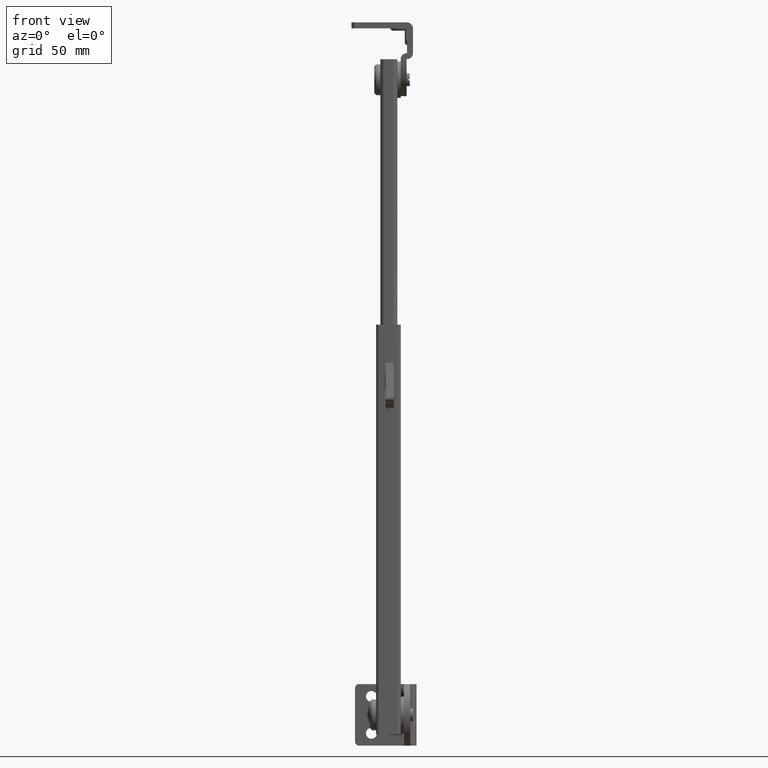
[diagram: clean part render]
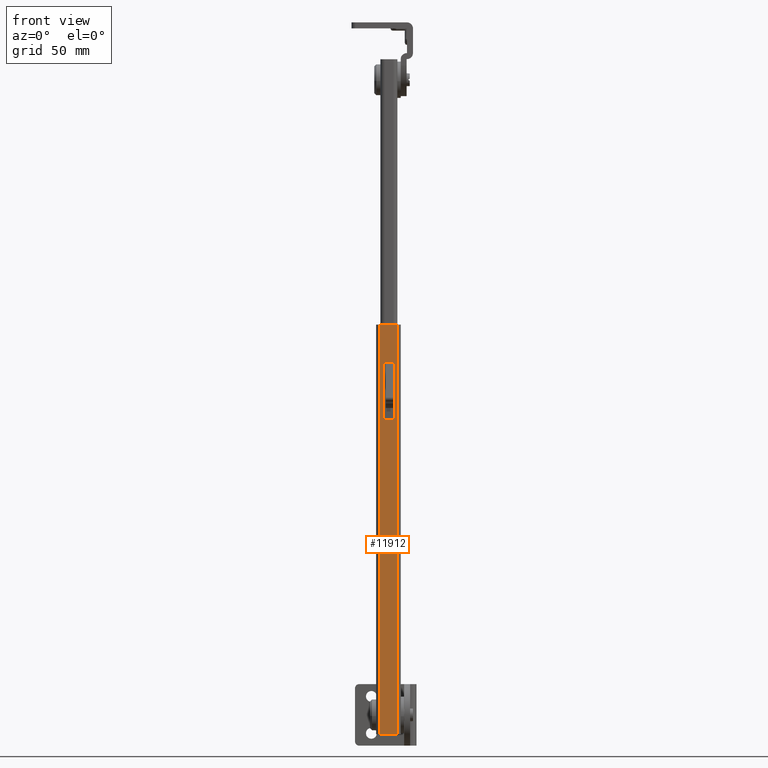
[diagram: same view with one face highlighted and labeled with its STEP entity id]
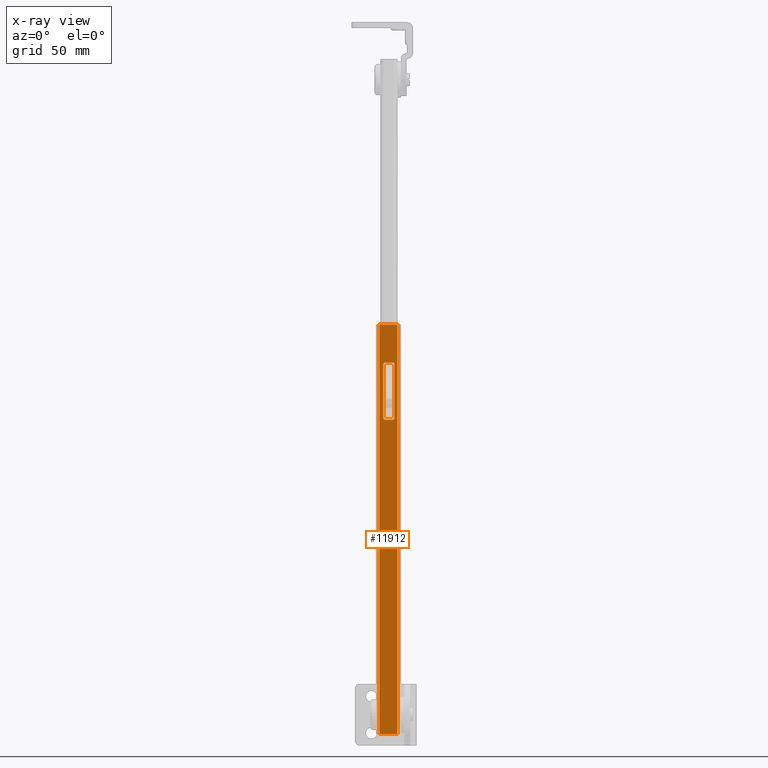
[diagram: x-ray of the same camera — body ghosted, the highlighted face saturated]
A machine part, front view. The second image highlights one B-rep face of the part: STEP entity #11912.
The next image is the same camera in x-ray: the body ghosted, the highlighted face saturated — about 0% of this face is hidden behind the body in this view.
In plain terms, the highlighted face is a freeform B-spline surface patch.
Its self-contained STEP definition (entity closure, byte-faithful):
#11041=CARTESIAN_POINT('',(9.0,-12.500000000000000,145.000000157079600));
#11042=VERTEX_POINT('',#11041);
#11065=CARTESIAN_POINT('',(8.0,-12.500000000000000,144.0));
#11066=VERTEX_POINT('',#11065);
#11072=CARTESIAN_POINT('',(8.999999999999988,-12.500000000000000,145.000000157079600));
#11073=CARTESIAN_POINT('',(9.000000065064494,-12.499999999999996,144.585786548698930));
#11074=CARTESIAN_POINT('',(8.707106836722570,-12.500000000000000,144.292893274349500));
#11075=CARTESIAN_POINT('',(8.414213608380646,-12.499999999999996,144.0));
#11076=CARTESIAN_POINT('',(8.0,-12.500000000000000,144.0));
#11084=(BOUNDED_CURVE()B_SPLINE_CURVE(2,(#11072,#11073,#11074,#11075,#11076),.UNSPECIFIED.,.F.,.U.)B_SPLINE_CURVE_WITH_KNOTS((3,2,3),(0.0,0.500000000000000,1.0),.UNSPECIFIED.)CURVE()GEOMETRIC_REPRESENTATION_ITEM()RATIONAL_B_SPLINE_CURVE((1.0,0.923879517483346,1.0,0.923879517483346,1.0))REPRESENTATION_ITEM(''));
#11085=EDGE_CURVE('',#11042,#11066,#11084,.T.);
#11102=CARTESIAN_POINT('',(4.500000052360081,-12.500000000000000,144.0));
#11103=VERTEX_POINT('',#11102);
#11109=CARTESIAN_POINT('',(4.500000052360081,-12.500000000000000,144.0));
#11110=CARTESIAN_POINT('',(8.0,-12.500000000000000,144.0));
#11111=QUASI_UNIFORM_CURVE('',1,(#11109,#11110),.UNSPECIFIED.,.F.,.U.);
#11112=EDGE_CURVE('',#11103,#11066,#11111,.T.);
#11150=CARTESIAN_POINT('',(3.500000000000000,-12.500000000000000,145.0));
#11151=VERTEX_POINT('',#11150);
#11157=CARTESIAN_POINT('',(4.500000052360081,-12.500000000000000,144.0));
#11158=CARTESIAN_POINT('',(4.085786474651131,-12.500000000000000,143.999999978311820));
#11159=CARTESIAN_POINT('',(3.792893237325666,-12.500000000000000,144.292893200301390));
#11160=CARTESIAN_POINT('',(3.500000000000200,-12.500000000000000,144.585786422291050));
#11161=CARTESIAN_POINT('',(3.500000000000200,-12.500000000000000,145.0));
#11169=(BOUNDED_CURVE()B_SPLINE_CURVE(2,(#11157,#11158,#11159,#11160,#11161),.UNSPECIFIED.,.F.,.U.)B_SPLINE_CURVE_WITH_KNOTS((3,2,3),(0.0,0.500000000000000,1.0),.UNSPECIFIED.)CURVE()GEOMETRIC_REPRESENTATION_ITEM()RATIONAL_B_SPLINE_CURVE((1.0,0.923879527501972,1.0,0.923879527501972,1.0))REPRESENTATION_ITEM(''));
#11170=EDGE_CURVE('',#11103,#11151,#11169,.T.);
#11187=CARTESIAN_POINT('',(3.500000000000200,-12.500000000000000,171.0));
#11188=VERTEX_POINT('',#11187);
#11194=CARTESIAN_POINT('',(3.500000000000200,-12.500000000000000,171.0));
#11195=CARTESIAN_POINT('',(3.500000000000000,-12.500000000000000,145.0));
#11196=QUASI_UNIFORM_CURVE('',1,(#11194,#11195),.UNSPECIFIED.,.F.,.U.);
#11197=EDGE_CURVE('',#11188,#11151,#11196,.T.);
#11233=CARTESIAN_POINT('',(4.500000000000200,-12.500000000000000,172.0));
#11234=VERTEX_POINT('',#11233);
#11240=CARTESIAN_POINT('',(3.500000000000200,-12.500000000000000,171.0));
#11241=CARTESIAN_POINT('',(3.500000000000200,-12.500000000000000,172.000000000000030));
#11242=CARTESIAN_POINT('',(4.500000000000200,-12.500000000000000,172.0));
#11250=(BOUNDED_CURVE()B_SPLINE_CURVE(2,(#11240,#11241,#11242),.UNSPECIFIED.,.F.,.U.)CURVE()GEOMETRIC_REPRESENTATION_ITEM()QUASI_UNIFORM_CURVE()RATIONAL_B_SPLINE_CURVE((1.0,0.707106781186548,1.0))REPRESENTATION_ITEM(''));
#11251=EDGE_CURVE('',#11188,#11234,#11250,.T.);
#11268=CARTESIAN_POINT('',(8.000000052359880,-12.500000000000000,172.0));
#11269=VERTEX_POINT('',#11268);
#11275=CARTESIAN_POINT('',(8.000000052359880,-12.500000000000000,172.0));
#11276=CARTESIAN_POINT('',(4.500000000000200,-12.500000000000000,172.0));
#11277=QUASI_UNIFORM_CURVE('',1,(#11275,#11276),.UNSPECIFIED.,.F.,.U.);
#11278=EDGE_CURVE('',#11269,#11234,#11277,.T.);
#11316=CARTESIAN_POINT('',(9.0,-12.500000000000000,170.999999912733500));
#11317=VERTEX_POINT('',#11316);
#11323=CARTESIAN_POINT('',(8.000000052359880,-12.500000000000000,172.0));
#11324=CARTESIAN_POINT('',(8.414213624956886,-12.500000000000004,171.999999978311820));
#11325=CARTESIAN_POINT('',(8.707106830551927,-12.500000000000000,171.707106731821200));
#11326=CARTESIAN_POINT('',(9.000000036146965,-12.500000000000004,171.414213485330580));
#11327=CARTESIAN_POINT('',(8.999999999999996,-12.500000000000000,170.999999912733500));
#11335=(BOUNDED_CURVE()B_SPLINE_CURVE(2,(#11323,#11324,#11325,#11326,#11327),.UNSPECIFIED.,.F.,.U.)B_SPLINE_CURVE_WITH_KNOTS((3,2,3),(0.0,0.500000000000000,1.0),.UNSPECIFIED.)CURVE()GEOMETRIC_REPRESENTATION_ITEM()RATIONAL_B_SPLINE_CURVE((1.0,0.923879529171740,1.0,0.923879529171740,1.0))REPRESENTATION_ITEM(''));
#11336=EDGE_CURVE('',#11269,#11317,#11335,.T.);
#11352=CARTESIAN_POINT('',(9.0,-12.500000000000000,145.000000157079600));
#11353=CARTESIAN_POINT('',(9.0,-12.500000000000000,170.999999912733500));
#11354=QUASI_UNIFORM_CURVE('',1,(#11352,#11353),.UNSPECIFIED.,.F.,.U.);
#11355=EDGE_CURVE('',#11042,#11317,#11354,.T.);
#11366=CARTESIAN_POINT('',(1.597476178661950,-12.500000000000000,190.500000000000000));
#11367=VERTEX_POINT('',#11366);
#11368=CARTESIAN_POINT('',(10.399994083775800,-12.500002000000000,190.500000000000000));
#11369=VERTEX_POINT('',#11368);
#11370=CARTESIAN_POINT('',(1.597476178661950,-12.500000000000000,190.500000000000000));
#11371=CARTESIAN_POINT('',(10.399994083775800,-12.500002000000000,190.500000000000000));
#11372=QUASI_UNIFORM_CURVE('',1,(#11370,#11371),.UNSPECIFIED.,.F.,.U.);
#11373=EDGE_CURVE('',#11367,#11369,#11372,.T.);
#11494=CARTESIAN_POINT('',(1.597476178661950,-12.500000000000000,-9.500000000000000));
#11495=VERTEX_POINT('',#11494);
#11496=CARTESIAN_POINT('',(10.399994083775800,-12.500002000000000,-9.500000000000000));
#11497=VERTEX_POINT('',#11496);
#11498=CARTESIAN_POINT('',(1.597476178661950,-12.500000000000000,-9.500000000000000));
#11499=CARTESIAN_POINT('',(10.399994083775800,-12.500002000000000,-9.500000000000000));
#11500=QUASI_UNIFORM_CURVE('',1,(#11498,#11499),.UNSPECIFIED.,.F.,.U.);
#11501=EDGE_CURVE('',#11495,#11497,#11500,.T.);
#11638=CARTESIAN_POINT('',(1.597476178661950,-12.500000000000000,-9.500000000000000));
#11639=CARTESIAN_POINT('',(1.597476178661950,-12.500000000000000,190.500000000000000));
#11640=QUASI_UNIFORM_CURVE('',1,(#11638,#11639),.UNSPECIFIED.,.F.,.U.);
#11641=EDGE_CURVE('',#11495,#11367,#11640,.T.);
#11719=CARTESIAN_POINT('',(10.399994083775800,-12.500002000000000,-9.500000000000000));
#11720=CARTESIAN_POINT('',(10.399994083775800,-12.500002000000000,190.500000000000000));
#11721=QUASI_UNIFORM_CURVE('',1,(#11719,#11720),.UNSPECIFIED.,.F.,.U.);
#11722=EDGE_CURVE('',#11497,#11369,#11721,.T.);
#11891=CARTESIAN_POINT('',(1.157790375179537,-12.500000000000000,-19.489999612361199));
#11892=CARTESIAN_POINT('',(1.157790375179537,-12.500000000000000,200.490004976779290));
#11893=CARTESIAN_POINT('',(10.839679415054359,-12.500000000000000,-19.489999612361199));
#11894=CARTESIAN_POINT('',(10.839679415054359,-12.500000000000000,200.490004976779290));
#11895=B_SPLINE_SURFACE_WITH_KNOTS('',1,1,((#11891,#11893),(#11892,#11894)),.UNSPECIFIED.,.F.,.F.,.U.,(2,2),(2,2),(0.0,219.980004589140490),(0.0,9.681889039874822),.UNSPECIFIED.);
#11896=ORIENTED_EDGE('',*,*,#11373,.F.);
#11897=ORIENTED_EDGE('',*,*,#11641,.F.);
#11898=ORIENTED_EDGE('',*,*,#11501,.T.);
#11899=ORIENTED_EDGE('',*,*,#11722,.T.);
#11900=EDGE_LOOP('',(#11896,#11897,#11898,#11899));
#11901=FACE_OUTER_BOUND('',#11900,.T.);
#11902=ORIENTED_EDGE('',*,*,#11355,.F.);
#11903=ORIENTED_EDGE('',*,*,#11085,.T.);
#11904=ORIENTED_EDGE('',*,*,#11112,.F.);
#11905=ORIENTED_EDGE('',*,*,#11170,.T.);
#11906=ORIENTED_EDGE('',*,*,#11197,.F.);
#11907=ORIENTED_EDGE('',*,*,#11251,.T.);
#11908=ORIENTED_EDGE('',*,*,#11278,.F.);
#11909=ORIENTED_EDGE('',*,*,#11336,.T.);
#11910=EDGE_LOOP('',(#11902,#11903,#11904,#11905,#11906,#11907,#11908,#11909));
#11911=FACE_BOUND('',#11910,.T.);
#11912=ADVANCED_FACE('',(#11901,#11911),#11895,.F.);